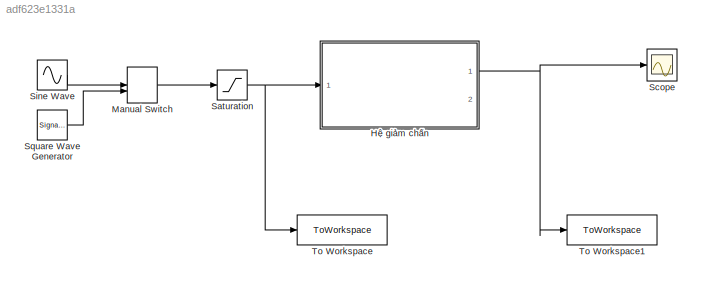
MODEL slx_adf623e1331a
KIND model
CONFIG AbsTol = auto
CONFIG EnableMultiTasking = off
CONFIG FixedStep = 0.01
CONFIG MaxStep = auto
CONFIG MinStep = auto
CONFIG RelTol = 1e-3
CONFIG SampleTimeConstraint = Unconstrained
CONFIG Solver = FixedStepAuto
CONFIG SolverName = FixedStepAuto
CONFIG StartTime = 0
CONFIG StopTime = 100
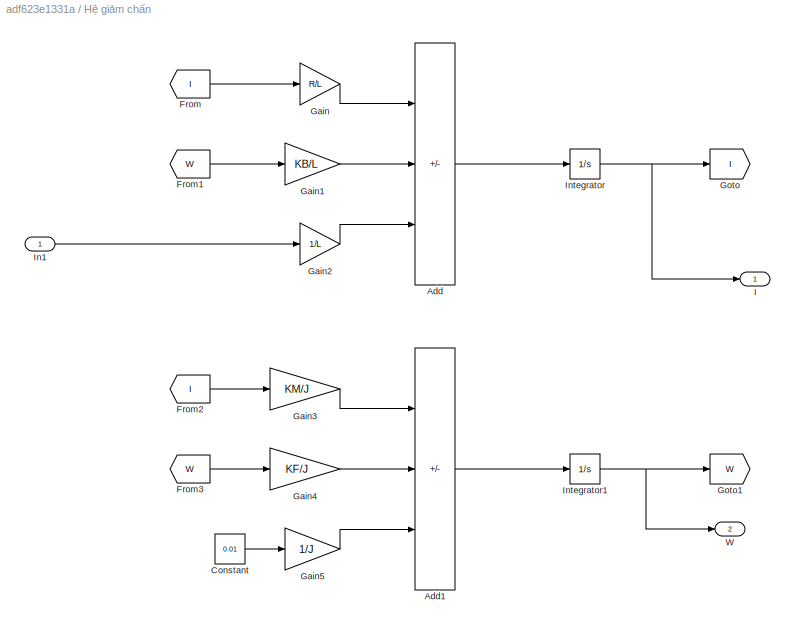
BLOCK [SubSystem] Hệ giảm chấn 
  Ports = [1, 2]
  RequestExecContextInheritance = off
BLOCK [Sum] Hệ giảm chấn /Add
  IconShape = rectangular
  Inputs = --+
  Ports = [3, 1]
BLOCK [Sum] Hệ giảm chấn /Add1
  IconShape = rectangular
  Inputs = --+
  Ports = [3, 1]
BLOCK [Constant] Hệ giảm chấn /Constant
  Value = 0.01
BLOCK [From] Hệ giảm chấn /From
  GotoTag = I
BLOCK [From] Hệ giảm chấn /From1
  GotoTag = W
BLOCK [From] Hệ giảm chấn /From2
  GotoTag = I
BLOCK [From] Hệ giảm chấn /From3
  GotoTag = W
BLOCK [Gain] Hệ giảm chấn /Gain
  Gain = R/L
BLOCK [Gain] Hệ giảm chấn /Gain1
  Gain = KB/L
BLOCK [Gain] Hệ giảm chấn /Gain2
  Gain = 1/L
BLOCK [Gain] Hệ giảm chấn /Gain3
  Gain = KM/J
BLOCK [Gain] Hệ giảm chấn /Gain4
  Gain = KF/J
BLOCK [Gain] Hệ giảm chấn /Gain5
  Gain = 1/J
BLOCK [Goto] Hệ giảm chấn /Goto
  GotoTag = I
BLOCK [Goto] Hệ giảm chấn /Goto1
  GotoTag = W
BLOCK [Outport] Hệ giảm chấn /I
BLOCK [Inport] Hệ giảm chấn /In1
BLOCK [Integrator] Hệ giảm chấn /Integrator
  Ports = [1, 1]
BLOCK [Integrator] Hệ giảm chấn /Integrator1
  Ports = [1, 1]
BLOCK [Outport] Hệ giảm chấn /W
  Port = 2
BLOCK [ManualSwitch] Manual Switch
  CurrentSetting = 0
BLOCK [Saturate] Saturation
  LowerLimit = -12
  UpperLimit = 12
BLOCK [Scope] Scope
  Floating = off
  NumInputPorts = 1
  Ports = [1]
  ScopeSpecificationString = Simulink.scopes.TimeScopeBlockCfg('CurrentConfiguration', extmgr.ConfigurationSet(extmgr.Configuration('Core','General UI',true),extmgr.Configuration('Core','Source UI',true),extmgr.Configuration('Sources','WiredSimulink',true),extmgr.Configuration('Visuals','Time Domain',true,'SerializedDisplays',{struct('MinYLimReal','-2.72408','MaxYLimReal','2.37199','YLabelReal','','MinYLimMag','0.00000','MaxY...<+1375ch>
BLOCK [Sin] Sine Wave
  Ports = [0, 1]
  SampleTime = 0.01
BLOCK [SignalGenerator] Square Wave Generator
  Amplitude = 20
  Frequency = 10
  Ports = [0, 1]
  Units = rad/sec
  WaveForm = random
BLOCK [ToWorkspace] To Workspace
  FixptAsFi = on
  MaxDataPoints = inf
  Ports = [1]
  SampleTime = 0.01
  SaveFormat = Timeseries
  VariableName = u
BLOCK [ToWorkspace] To Workspace1
  FixptAsFi = on
  MaxDataPoints = inf
  Ports = [1]
  SampleTime = 0.01
  SaveFormat = Timeseries
  VariableName = y
LINE Hệ giảm chấn /Add1:1 -> Hệ giảm chấn /Integrator1:1
LINE Hệ giảm chấn /Add:1 -> Hệ giảm chấn /Integrator:1
LINE Hệ giảm chấn /Constant:1 -> Hệ giảm chấn /Gain5:1
LINE Hệ giảm chấn /From1:1 -> Hệ giảm chấn /Gain1:1
LINE Hệ giảm chấn /From2:1 -> Hệ giảm chấn /Gain3:1
LINE Hệ giảm chấn /From3:1 -> Hệ giảm chấn /Gain4:1
LINE Hệ giảm chấn /From:1 -> Hệ giảm chấn /Gain:1
LINE Hệ giảm chấn /Gain1:1 -> Hệ giảm chấn /Add:2
LINE Hệ giảm chấn /Gain2:1 -> Hệ giảm chấn /Add:3
LINE Hệ giảm chấn /Gain3:1 -> Hệ giảm chấn /Add1:1
LINE Hệ giảm chấn /Gain4:1 -> Hệ giảm chấn /Add1:2
LINE Hệ giảm chấn /Gain5:1 -> Hệ giảm chấn /Add1:3
LINE Hệ giảm chấn /Gain:1 -> Hệ giảm chấn /Add:1
LINE Hệ giảm chấn /In1:1 -> Hệ giảm chấn /Gain2:1
NET Hệ giảm chấn /Integrator1:1 -> Hệ giảm chấn /Goto1:1, Hệ giảm chấn /W:1
NET Hệ giảm chấn /Integrator:1 -> Hệ giảm chấn /Goto:1, Hệ giảm chấn /I:1
NET Hệ giảm chấn :1 -> Scope:1, To Workspace1:1
LINE Manual Switch:1 -> Saturation:1
NET Saturation:1 -> Hệ giảm chấn :1, To Workspace:1
LINE Sine Wave:1 -> Manual Switch:1
LINE Square Wave Generator:1 -> Manual Switch:2
note: NET lines group one-source signal fan-out (src -> all destinations, sorted); 1:1 wires keep LINE
